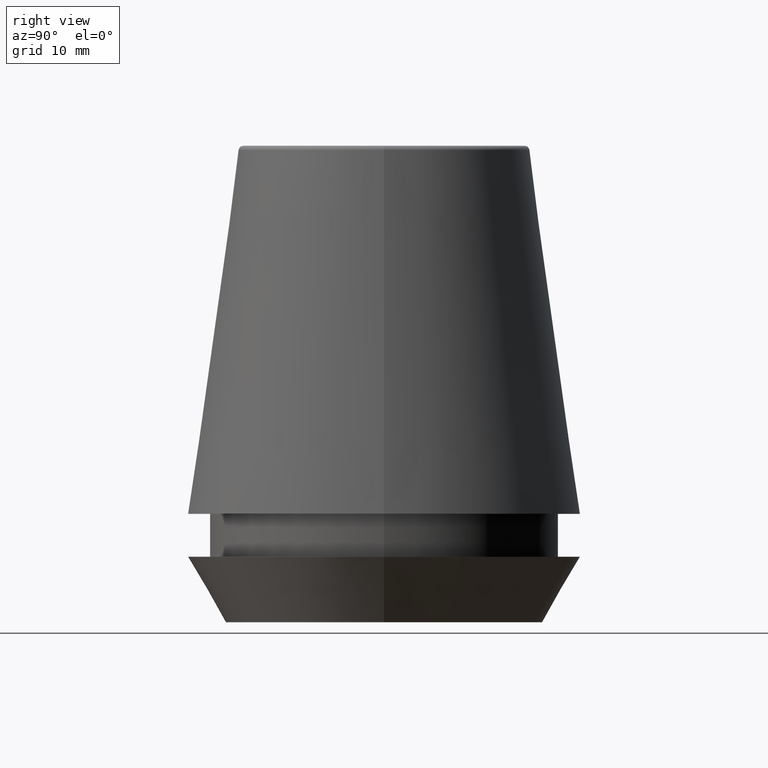
[diagram: clean part render]
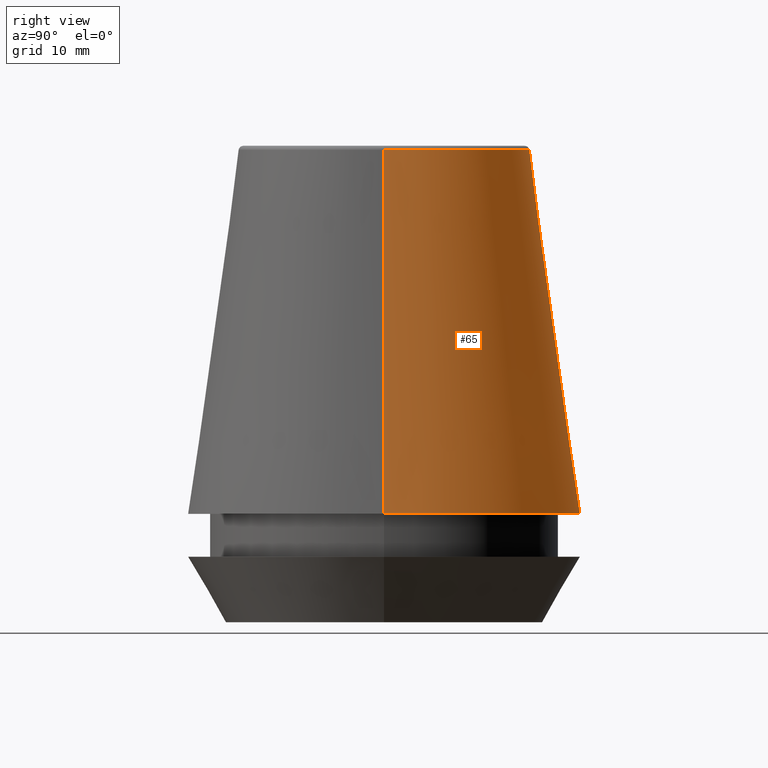
[diagram: same view with one face highlighted and labeled with its STEP entity id]
A machine part, right view. The second image highlights one B-rep face of the part: STEP entity #65.
In plain terms, the highlighted conical surface has half-angle 8 deg.
Its self-contained STEP definition (entity closure, byte-faithful):
#12 = VECTOR ( 'NONE', #46, 1000.000000000000000 ) ;
#27 = EDGE_CURVE ( 'NONE', #360, #171, #384, .T. ) ;
#28 = DIRECTION ( 'NONE',  ( 0.0000000000000000000, 0.0000000000000000000, -1.000000000000000000 ) ) ;
#38 = CARTESIAN_POINT ( 'NONE',  ( 0.0000000000000000000, 0.0000000000000000000, 39.65566924038402900 ) ) ;
#41 = CONICAL_SURFACE ( 'NONE', #364, 16.50032537154048700, 0.1396263401595395900 ) ;
#46 = DIRECTION ( 'NONE',  ( 0.1391731009600586900, 1.704378926181473100E-017, -0.9902680687415712500 ) ) ;
#47 = CARTESIAN_POINT ( 'NONE',  ( 16.50032537154048700, 2.020707065114692300E-015, 9.099999999999997900 ) ) ;
#65 = ADVANCED_FACE ( 'NONE', ( #257 ), #41, .T. ) ;
#73 = LINE ( 'NONE', #146, #313 ) ;
#83 = ORIENTED_EDGE ( 'NONE', *, *, #219, .T. ) ;
#106 = CARTESIAN_POINT ( 'NONE',  ( 16.50032537154048700, 2.020707065114692300E-015, 9.099999999999997900 ) ) ;
#111 = CIRCLE ( 'NONE', #334, 12.20600611160694300 ) ;
#129 = DIRECTION ( 'NONE',  ( -0.1391731009600586900, 0.0000000000000000000, -0.9902680687415712500 ) ) ;
#139 = EDGE_LOOP ( 'NONE', ( #385, #292, #83, #235 ) ) ;
#146 = CARTESIAN_POINT ( 'NONE',  ( -16.50032537154048700, 0.0000000000000000000, 9.099999999999997900 ) ) ;
#171 = VERTEX_POINT ( 'NONE', #47 ) ;
#190 = CIRCLE ( 'NONE', #325, 16.50032537154048700 ) ;
#193 = CARTESIAN_POINT ( 'NONE',  ( -12.20600611160694300, 0.0000000000000000000, 39.65566924038402900 ) ) ;
#202 = VERTEX_POINT ( 'NONE', #193 ) ;
#207 = DIRECTION ( 'NONE',  ( -0.0000000000000000000, -0.0000000000000000000, 1.000000000000000000 ) ) ;
#219 = EDGE_CURVE ( 'NONE', #171, #350, #190, .T. ) ;
#235 = ORIENTED_EDGE ( 'NONE', *, *, #358, .F. ) ;
#243 = DIRECTION ( 'NONE',  ( -1.000000000000000000, 0.0000000000000000000, 0.0000000000000000000 ) ) ;
#244 = CARTESIAN_POINT ( 'NONE',  ( -16.50032537154048700, 0.0000000000000000000, 9.099999999999997900 ) ) ;
#257 = FACE_OUTER_BOUND ( 'NONE', #139, .T. ) ;
#259 = CARTESIAN_POINT ( 'NONE',  ( 12.20600611160694300, 1.757755848304969800E-015, 39.65566924038402900 ) ) ;
#263 = DIRECTION ( 'NONE',  ( 1.000000000000000000, 0.0000000000000000000, 0.0000000000000000000 ) ) ;
#292 = ORIENTED_EDGE ( 'NONE', *, *, #27, .T. ) ;
#306 = DIRECTION ( 'NONE',  ( 1.000000000000000000, 0.0000000000000000000, 0.0000000000000000000 ) ) ;
#313 = VECTOR ( 'NONE', #129, 1000.000000000000000 ) ;
#324 = DIRECTION ( 'NONE',  ( -0.0000000000000000000, -0.0000000000000000000, 1.000000000000000000 ) ) ;
#325 = AXIS2_PLACEMENT_3D ( 'NONE', #386, #324, #263 ) ;
#334 = AXIS2_PLACEMENT_3D ( 'NONE', #38, #207, #306 ) ;
#341 = EDGE_CURVE ( 'NONE', #360, #202, #111, .T. ) ;
#350 = VERTEX_POINT ( 'NONE', #244 ) ;
#358 = EDGE_CURVE ( 'NONE', #202, #350, #73, .T. ) ;
#360 = VERTEX_POINT ( 'NONE', #259 ) ;
#364 = AXIS2_PLACEMENT_3D ( 'NONE', #383, #28, #243 ) ;
#383 = CARTESIAN_POINT ( 'NONE',  ( 0.0000000000000000000, 0.0000000000000000000, 9.099999999999997900 ) ) ;
#384 = LINE ( 'NONE', #106, #12 ) ;
#385 = ORIENTED_EDGE ( 'NONE', *, *, #341, .F. ) ;
#386 = CARTESIAN_POINT ( 'NONE',  ( 0.0000000000000000000, 0.0000000000000000000, 9.099999999999997900 ) ) ;